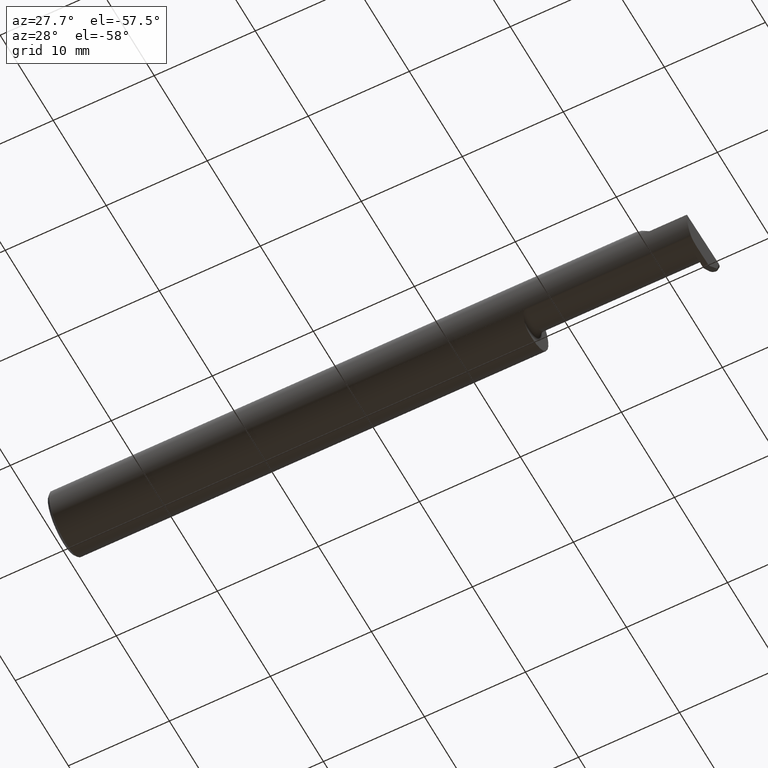
[diagram: clean part render]
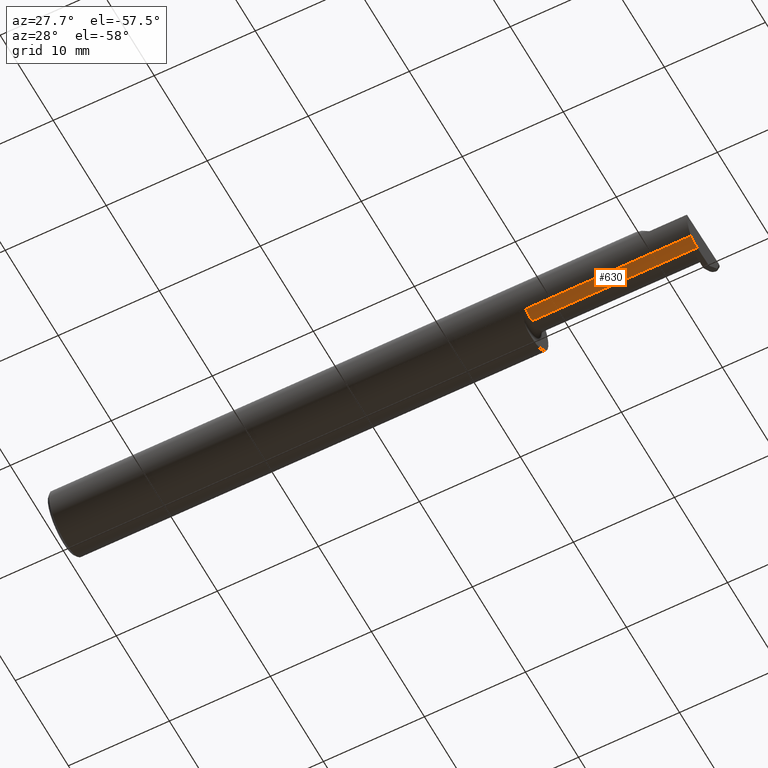
[diagram: same view with one face highlighted and labeled with its STEP entity id]
A machine part, auxiliary view. The second image highlights one B-rep face of the part: STEP entity #630.
In plain terms, the highlighted cylindrical surface (edge-blend (fillet) strip) has radius 2.4892 mm, axis along (-1, -0, -0).
Its self-contained STEP definition (entity closure, byte-faithful):
#3 = VERTEX_POINT ( 'NONE', #697 ) ;
#22 = CARTESIAN_POINT ( 'NONE',  ( 1.849999999999999867, -0.04400000000000004602, 0.000000000000000000 ) ) ;
#38 = LINE ( 'NONE', #286, #395 ) ;
#60 = ORIENTED_EDGE ( 'NONE', *, *, #526, .F. ) ;
#110 =( BOUNDED_CURVE ( )  B_SPLINE_CURVE ( 3, ( #685, #121, #305, #811 ),
 .UNSPECIFIED., .F., .F. ) 
 B_SPLINE_CURVE_WITH_KNOTS ( ( 4, 4 ),
 ( 6.253187659403638854, 6.746650124384929725 ),
 .UNSPECIFIED. ) 
 CURVE ( )  GEOMETRIC_REPRESENTATION_ITEM ( )  RATIONAL_B_SPLINE_CURVE ( ( 1.000000000000000000, 0.9798106333074687591, 0.9798106333074687591, 1.000000000000000000 ) ) 
 REPRESENTATION_ITEM ( '' )  );
#121 = CARTESIAN_POINT ( 'NONE',  ( 2.493527483980555903, -0.07607783494366274213, -0.09402249966297454575 ) ) ;
#152 = ORIENTED_EDGE ( 'NONE', *, *, #588, .T. ) ;
#156 = VECTOR ( 'NONE', #449, 39.37007874015748143 ) ;
#164 = CARTESIAN_POINT ( 'NONE',  ( 2.473987104431409012, -0.04400000000000004602, -0.09800000000000001765 ) ) ;
#167 = CARTESIAN_POINT ( 'NONE',  ( 1.824999999999999956, -0.04400000000000004602, 0.000000000000000000 ) ) ;
#186 = CARTESIAN_POINT ( 'NONE',  ( 2.493546555653489705, -0.09042045454545441507, -0.08630840862739512509 ) ) ;
#211 = DIRECTION ( 'NONE',  ( -1.000000000000000000, -0.000000000000000000, -0.000000000000000000 ) ) ;
#234 = ORIENTED_EDGE ( 'NONE', *, *, #443, .F. ) ;
#286 = CARTESIAN_POINT ( 'NONE',  ( 1.824999999999999956, -0.04400000000000003908, -0.09800000000000003153 ) ) ;
#305 = CARTESIAN_POINT ( 'NONE',  ( 2.493664221452986052, -0.06028551311893198816, -0.09800000000000003153 ) ) ;
#337 = LINE ( 'NONE', #592, #156 ) ;
#339 = VERTEX_POINT ( 'NONE', #446 ) ;
#360 = CYLINDRICAL_SURFACE ( 'NONE', #639, 0.09800000000000003153 ) ;
#376 = DIRECTION ( 'NONE',  ( -1.000000000000000000, -0.000000000000000000, -0.000000000000000000 ) ) ;
#395 = VECTOR ( 'NONE', #684, 39.37007874015748143 ) ;
#400 = CIRCLE ( 'NONE', #800, 0.09800000000000003153 ) ;
#414 = VERTEX_POINT ( 'NONE', #500 ) ;
#443 = EDGE_CURVE ( 'NONE', #3, #710, #560, .T. ) ;
#446 = CARTESIAN_POINT ( 'NONE',  ( 1.849999999999999867, -0.09042045454545437344, -0.08630840862739513897 ) ) ;
#449 = DIRECTION ( 'NONE',  ( -1.000000000000000000, -0.000000000000000000, -0.000000000000000000 ) ) ;
#454 = DIRECTION ( 'NONE',  ( 0.000000000000000000, 0.000000000000000000, 1.000000000000000000 ) ) ;
#460 = VERTEX_POINT ( 'NONE', #186 ) ;
#465 = EDGE_CURVE ( 'NONE', #460, #3, #110, .T. ) ;
#497 = ORIENTED_EDGE ( 'NONE', *, *, #718, .F. ) ;
#500 = CARTESIAN_POINT ( 'NONE',  ( 1.849999999999999867, -0.04400000000000003908, -0.09800000000000003153 ) ) ;
#519 = ORIENTED_EDGE ( 'NONE', *, *, #465, .F. ) ;
#526 = EDGE_CURVE ( 'NONE', #414, #339, #400, .T. ) ;
#532 = DIRECTION ( 'NONE',  ( 0.000000000000000000, 0.000000000000000000, 1.000000000000000000 ) ) ;
#537 = DIRECTION ( 'NONE',  ( -1.000000000000000000, -0.000000000000000000, -0.000000000000000000 ) ) ;
#560 = LINE ( 'NONE', #703, #627 ) ;
#588 = EDGE_CURVE ( 'NONE', #460, #339, #337, .T. ) ;
#592 = CARTESIAN_POINT ( 'NONE',  ( 2.159734615000000080, -0.09042045454545441507, -0.08630840862739512509 ) ) ;
#594 = EDGE_LOOP ( 'NONE', ( #497, #234, #519, #152, #60 ) ) ;
#627 = VECTOR ( 'NONE', #376, 39.37007874015748143 ) ;
#630 = ADVANCED_FACE ( 'NONE', ( #801 ), #360, .T. ) ;
#639 = AXIS2_PLACEMENT_3D ( 'NONE', #167, #537, #532 ) ;
#684 = DIRECTION ( 'NONE',  ( -1.000000000000000000, -0.000000000000000000, -0.000000000000000000 ) ) ;
#685 = CARTESIAN_POINT ( 'NONE',  ( 2.493546555653489705, -0.09042045454545441507, -0.08630840862739512509 ) ) ;
#697 = CARTESIAN_POINT ( 'NONE',  ( 2.493948486141865484, -0.04400000000000004602, -0.09800000000000001765 ) ) ;
#703 = CARTESIAN_POINT ( 'NONE',  ( 2.672413070268786939, -0.04400000000000004602, -0.09800000000000001765 ) ) ;
#710 = VERTEX_POINT ( 'NONE', #164 ) ;
#718 = EDGE_CURVE ( 'NONE', #710, #414, #38, .T. ) ;
#800 = AXIS2_PLACEMENT_3D ( 'NONE', #22, #211, #454 ) ;
#801 = FACE_OUTER_BOUND ( 'NONE', #594, .T. ) ;
#811 = CARTESIAN_POINT ( 'NONE',  ( 2.493948486141865484, -0.04400000000000004602, -0.09800000000000001765 ) ) ;